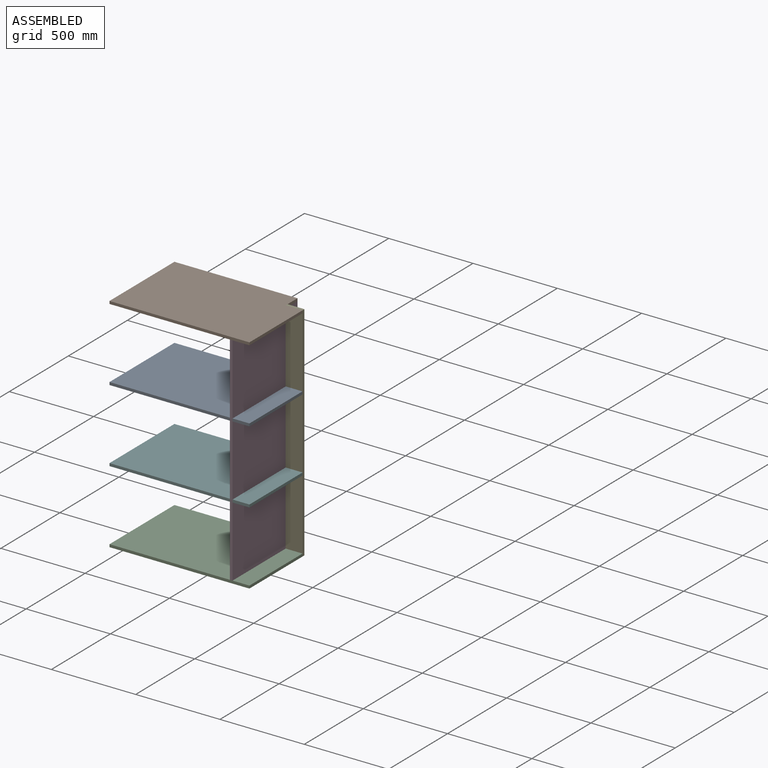
[diagram: assembled view]
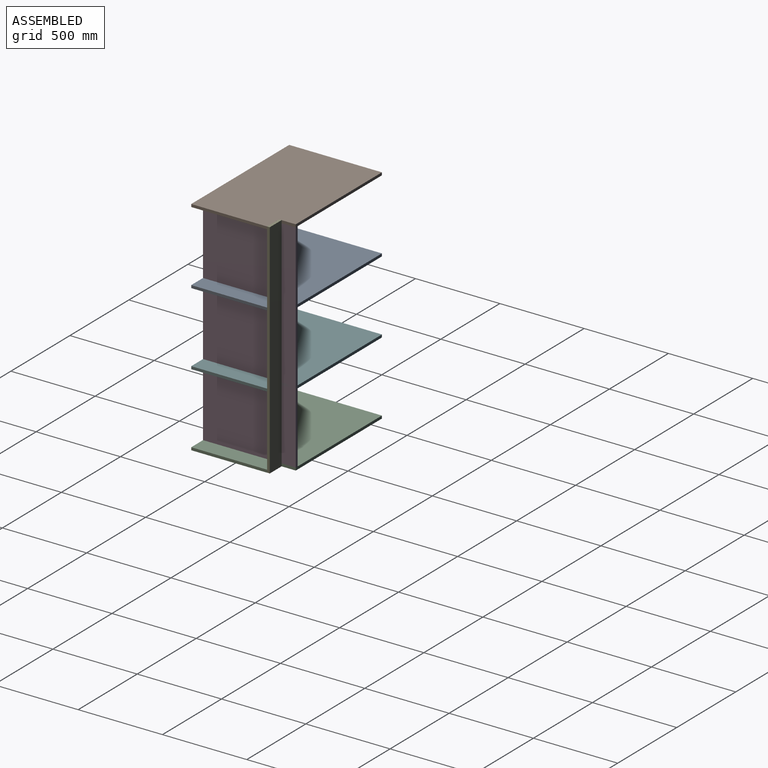
[diagram: assembled view, second angle]
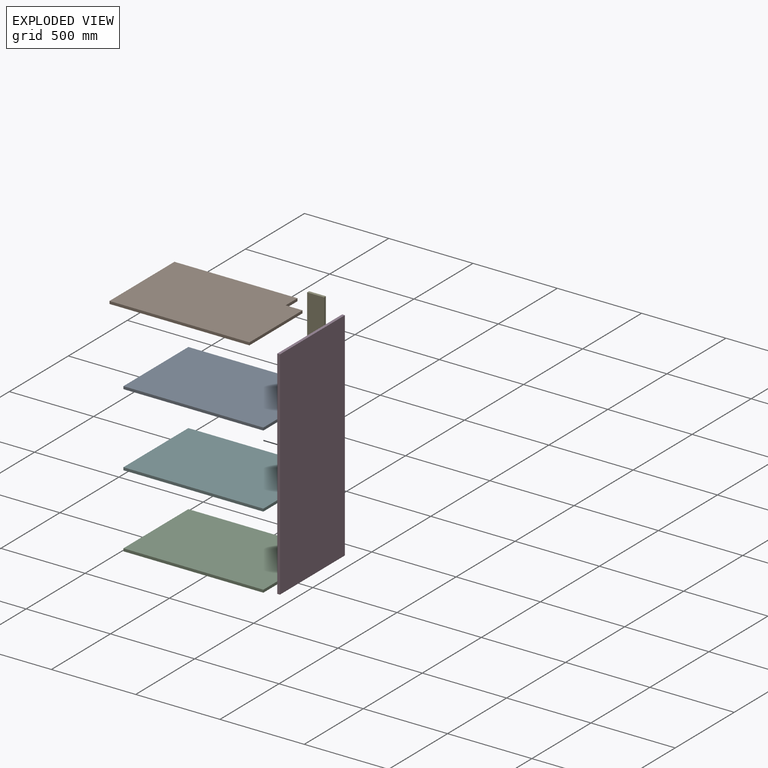
[diagram: exploded view]
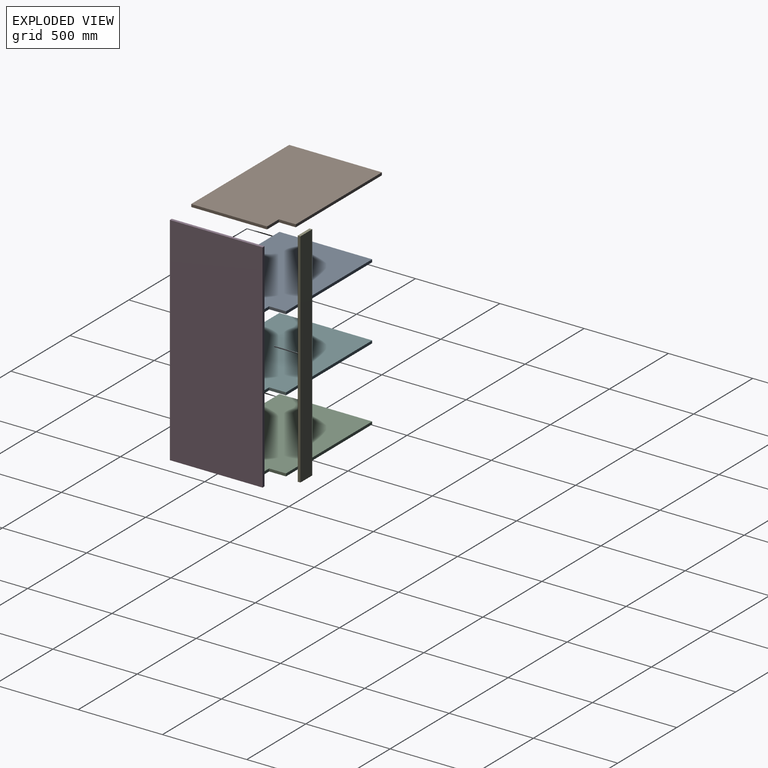
[diagram: exploded view, second angle]
ASSEMBLY  parts=6 mates=2
PART A: 8 faces, bbox 550x830x16 mm
  f0: plane 550x16mm, normal (0,1,0), area 8800mm2, adj f1,f5,f6,f7
  f1: plane 830x16mm, normal (-1,0,0), area 13280mm2, adj f0,f2,f6,f7
  f2: plane 450x16mm, normal (0,-1,0), area 7200mm2, adj f1,f3,f6,f7
  f3: plane 100x16mm, normal (1,0,0), area 1600mm2, adj f2,f4,f6,f7
  f4: plane 100x16mm, normal (0,-1,0), area 1600mm2, adj f3,f5,f6,f7
  f5: plane 730x16mm, normal (1,0,0), area 11680mm2, adj f0,f4,f6,f7
  f6: plane 830x550mm, normal (0,0,1), area 446500mm2, adj f0,f1,f2,f3,f4,f5
  f7: plane 830x550mm, normal (0,0,-1), area 446500mm2, adj f0,f1,f2,f3,f4,f5
PART B: same geometry as A
PART C: same geometry as A
PART D: 6 faces, bbox 1288x550x16 mm
  f0: plane 1288x16mm, normal (0,1,0), area 20608mm2, adj f1,f3,f4,f5
  f1: plane 550x16mm, normal (-1,0,0), area 8800mm2, adj f0,f2,f4,f5
  f2: plane 1288x16mm, normal (0,-1,0), area 20608mm2, adj f1,f3,f4,f5
  f3: plane 550x16mm, normal (1,0,0), area 8800mm2, adj f0,f2,f4,f5
  f4: plane 1288x550mm, normal (0,0,1), area 708400mm2, adj f0,f1,f2,f3
  f5: plane 1288x550mm, normal (0,0,-1), area 708400mm2, adj f0,f1,f2,f3
PART E: 6 faces, bbox 1320x100x16 mm
  f0: plane 1320x16mm, normal (0,1,0), area 21120mm2, adj f1,f3,f4,f5
  f1: plane 100x16mm, normal (-1,0,0), area 1600mm2, adj f0,f2,f4,f5
  f2: plane 1320x16mm, normal (0,-1,0), area 21120mm2, adj f1,f3,f4,f5
  f3: plane 100x16mm, normal (1,0,0), area 1600mm2, adj f0,f2,f4,f5
  f4: plane 1320x100mm, normal (0,0,1), area 132000mm2, adj f0,f1,f2,f3
  f5: plane 1320x100mm, normal (0,0,-1), area 132000mm2, adj f0,f1,f2,f3
PART F: same geometry as A
PLACE A rot(axis=(0,0,1),90deg) t=(1220.75,-226.09,-486.24)mm
PLACE B rot(axis=(0,0,1),90deg) t=(1220.75,-226.09,-51.57)mm
PLACE C rot(axis=(0,0,1),90deg) t=(1220.75,-226.09,-1355.57)mm
PLACE D rot(axis=(0,-1,0),90deg) t=(1185.57,-689.85,-102.78)mm
PLACE E rot(axis=(-0.58,0.58,0.58),120deg) t=(1261.31,-279.99,-1324.79)mm
PLACE F rot(axis=(0,0,1),90deg) t=(1220.75,-226.09,-920.91)mm
MATE pin_slot D.f5 <-> B.f4  axis (1,0,0) through (1185.57,-179.99,-51.57)mm
MATE fastened E.f5 <-> B.f3  axis (0,1,0) through (1285.57,-279.99,-35.57)mm
